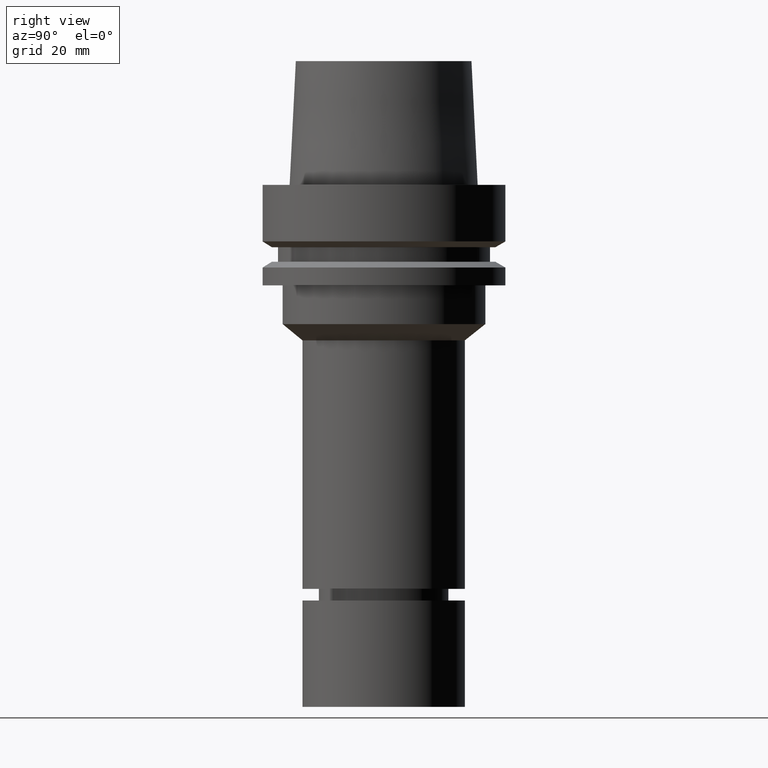
[diagram: clean part render]
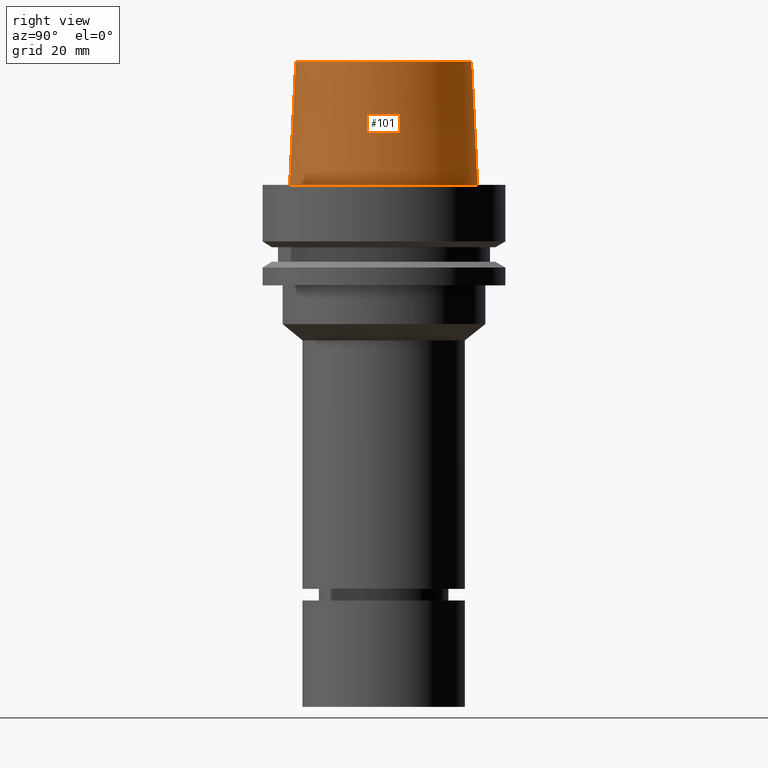
[diagram: same view with one face highlighted and labeled with its STEP entity id]
A machine part, right view. The second image highlights one B-rep face of the part: STEP entity #101.
In plain terms, the highlighted conical surface has half-angle 2.862 deg.
Its self-contained STEP definition (entity closure, byte-faithful):
#101=ADVANCED_FACE('Unnamed[1]',(#247,#248),#249,.T.);
#172=EDGE_CURVE('Unnamed[1]',#358,#358,#359,.T.);
#176=EDGE_CURVE('Unnamed[1]',#364,#364,#365,.T.);
#247=FACE_BOUND('',#446,.T.);
#248=FACE_BOUND('',#447,.T.);
#249=CONICAL_SURFACE('',#448,23.515,0.0499583957219433);
#358=VERTEX_POINT('',#583);
#359=CIRCLE('',#584,24.315);
#364=VERTEX_POINT('',#591);
#365=CIRCLE('',#592,22.715);
#446=EDGE_LOOP('',(#664));
#447=EDGE_LOOP('',(#665));
#448=AXIS2_PLACEMENT_3D('',#666,#667,#668);
#583=CARTESIAN_POINT('',(-2.99705514225764E-031,24.315,2.97772869212679E-015));
#584=AXIS2_PLACEMENT_3D('',#790,#791,#792);
#591=CARTESIAN_POINT('',(-1.95943487863576E-015,22.715,32.0));
#592=AXIS2_PLACEMENT_3D('',#796,#797,#798);
#664=ORIENTED_EDGE('',*,*,#176,.F.);
#665=ORIENTED_EDGE('',*,*,#172,.T.);
#666=CARTESIAN_POINT('',(-9.79717439317882E-016,-1.95943487863576E-015,16.0));
#667=DIRECTION('',(6.12323399573677E-017,1.22464679914735E-016,-1.0));
#668=DIRECTION('',(-1.23259516440783E-032,1.0,1.22464679914735E-016));
#790=CARTESIAN_POINT('',(0.0,0.0,0.0));
#791=DIRECTION('',(-6.12323399573677E-017,-1.22464679914735E-016,1.0));
#792=DIRECTION('',(-1.23259516440783E-032,1.0,1.22464679914735E-016));
#796=CARTESIAN_POINT('',(-1.95943487863576E-015,-3.91886975727153E-015,32.0));
#797=DIRECTION('',(-6.12323399573676E-017,-1.22464679914735E-016,1.0));
#798=DIRECTION('',(-1.23259516440783E-032,1.0,1.22464679914735E-016));